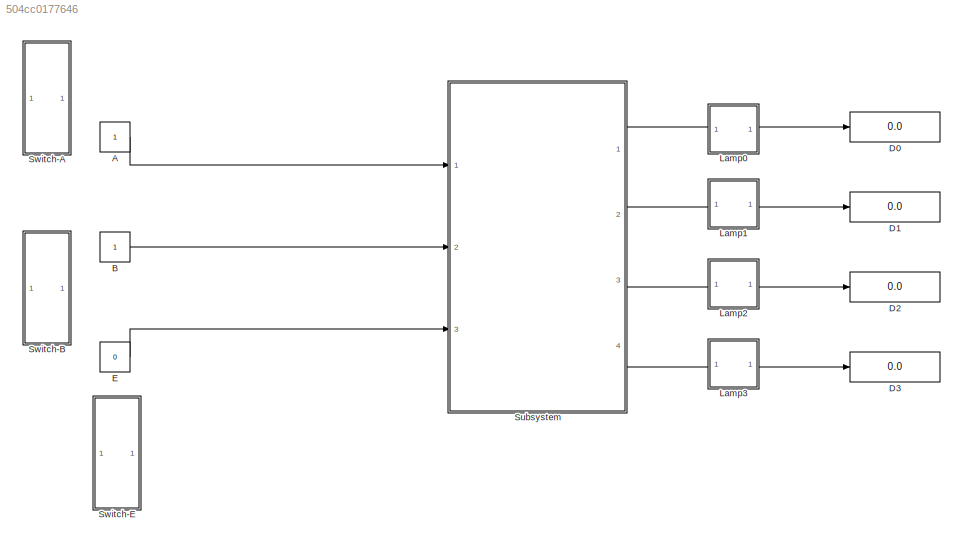
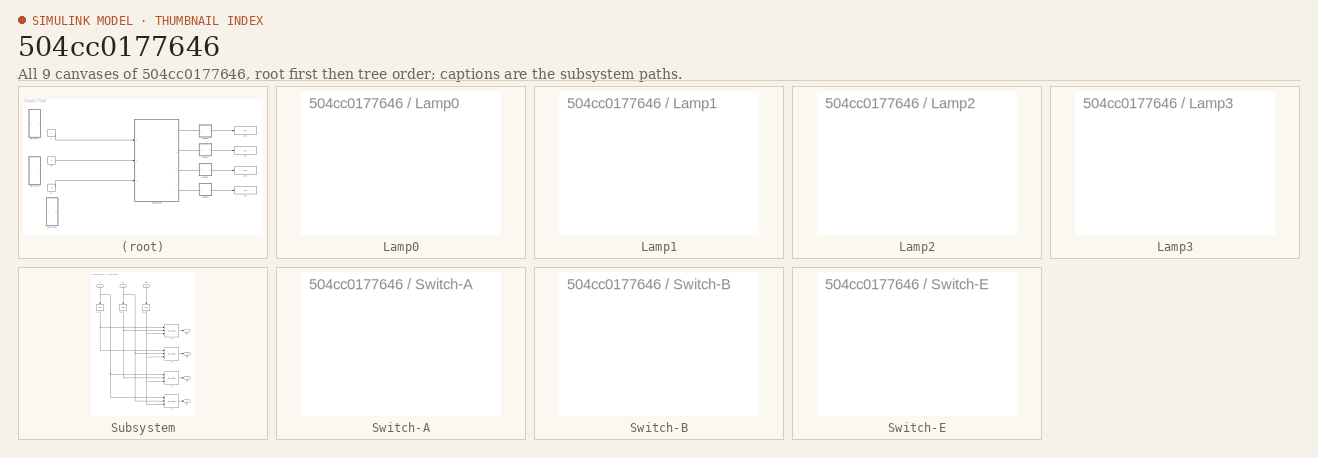
[diagram: thumbnail index - all 9 canvases of the model, root first then tree order]
MODEL slx_504cc0177646
KIND model
CONFIG AbsTol = auto
CONFIG FixedStep = auto
CONFIG MaxStep = auto
CONFIG MinStep = auto
CONFIG RelTol = 1e-3
CONFIG SampleTimeConstraint = Unconstrained
CONFIG Solver = ode45
CONFIG SolverMode = Auto
CONFIG SolverName = ode45
CONFIG StartTime = 0.0
CONFIG StopTime = 10.0
BLOCK [Constant] A
  OutDataTypeStr = boolean
BLOCK [Constant] B
  OutDataTypeStr = boolean
BLOCK [Display] D0
  Decimation = 1
  Ports = [1]
BLOCK [Display] D1
  Decimation = 1
  Ports = [1]
BLOCK [Display] D2
  Decimation = 1
  Ports = [1]
BLOCK [Display] D3
  Decimation = 1
  Ports = [1]
BLOCK [Constant] E
  OutDataTypeStr = boolean
  Value = 0
BLOCK [SubSystem] Lamp0
  DialogController = hmiCreateDDGDialog
  IsWebBlock = on
  MaskHideContents = on
  Ports = []
  RequestExecContextInheritance = off
BLOCK [SubSystem] Lamp1
  DialogController = hmiCreateDDGDialog
  IsWebBlock = on
  MaskHideContents = on
  Ports = []
  RequestExecContextInheritance = off
BLOCK [SubSystem] Lamp2
  DialogController = hmiCreateDDGDialog
  IsWebBlock = on
  MaskHideContents = on
  Ports = []
  RequestExecContextInheritance = off
BLOCK [SubSystem] Lamp3
  DialogController = hmiCreateDDGDialog
  IsWebBlock = on
  MaskHideContents = on
  Ports = []
  RequestExecContextInheritance = off
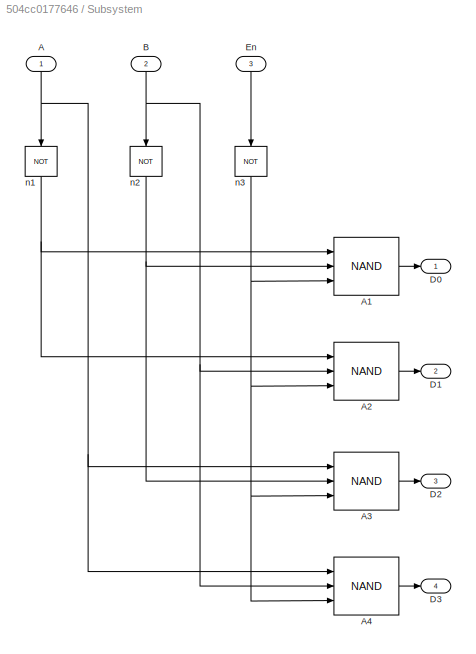
BLOCK [SubSystem] Subsystem
  Ports = [3, 4]
  RequestExecContextInheritance = off
BLOCK [Inport] Subsystem/A
  IconDisplay = Port number
BLOCK [Logic] Subsystem/A1
  AllPortsSameDT = off
  IconShape = distinctive
  Inputs = 3
  Operator = NAND
  OutDataTypeStr = boolean
  Ports = [3, 1]
BLOCK [Logic] Subsystem/A2
  AllPortsSameDT = off
  IconShape = distinctive
  Inputs = 3
  Operator = NAND
  OutDataTypeStr = boolean
  Ports = [3, 1]
BLOCK [Logic] Subsystem/A3
  AllPortsSameDT = off
  IconShape = distinctive
  Inputs = 3
  Operator = NAND
  OutDataTypeStr = boolean
  Ports = [3, 1]
BLOCK [Logic] Subsystem/A4
  AllPortsSameDT = off
  IconShape = distinctive
  Inputs = 3
  Operator = NAND
  OutDataTypeStr = boolean
  Ports = [3, 1]
BLOCK [Inport] Subsystem/B
  IconDisplay = Port number
  Port = 2
BLOCK [Outport] Subsystem/D0
  IconDisplay = Port number
BLOCK [Outport] Subsystem/D1
  IconDisplay = Port number
  Port = 2
BLOCK [Outport] Subsystem/D2
  IconDisplay = Port number
  Port = 3
BLOCK [Outport] Subsystem/D3
  IconDisplay = Port number
  Port = 4
BLOCK [Inport] Subsystem/En
  IconDisplay = Port number
  Port = 3
BLOCK [Logic] Subsystem/n1
  AllPortsSameDT = off
  IconShape = distinctive
  Operator = NOT
  OutDataTypeStr = boolean
  Ports = [1, 1]
BLOCK [Logic] Subsystem/n2
  AllPortsSameDT = off
  IconShape = distinctive
  Operator = NOT
  OutDataTypeStr = boolean
  Ports = [1, 1]
BLOCK [Logic] Subsystem/n3
  AllPortsSameDT = off
  IconShape = distinctive
  Operator = NOT
  OutDataTypeStr = boolean
  Ports = [1, 1]
BLOCK [SubSystem] Switch-A
  DialogController = hmiCreateDDGDialog
  IsWebBlock = on
  MaskHideContents = on
  Ports = []
  RequestExecContextInheritance = off
BLOCK [SubSystem] Switch-B
  DialogController = hmiCreateDDGDialog
  IsWebBlock = on
  MaskHideContents = on
  Ports = []
  RequestExecContextInheritance = off
BLOCK [SubSystem] Switch-E
  DialogController = hmiCreateDDGDialog
  IsWebBlock = on
  MaskHideContents = on
  Ports = []
  RequestExecContextInheritance = off
LINE A:1 -> Subsystem:1
LINE B:1 -> Subsystem:2
LINE E:1 -> Subsystem:3
LINE Subsystem/A1:1 -> Subsystem/D0:1
LINE Subsystem/A2:1 -> Subsystem/D1:1
LINE Subsystem/A3:1 -> Subsystem/D2:1
LINE Subsystem/A4:1 -> Subsystem/D3:1
NET Subsystem/A:1 -> Subsystem/A3:1, Subsystem/A4:1, Subsystem/n1:1
NET Subsystem/B:1 -> Subsystem/A2:2, Subsystem/A4:2, Subsystem/n2:1
LINE Subsystem/En:1 -> Subsystem/n3:1
NET Subsystem/n1:1 -> Subsystem/A1:1, Subsystem/A2:1
NET Subsystem/n2:1 -> Subsystem/A1:2, Subsystem/A3:2
NET Subsystem/n3:1 -> Subsystem/A1:3, Subsystem/A2:3, Subsystem/A3:3, Subsystem/A4:3
LINE Subsystem:1 -> D0:1
LINE Subsystem:2 -> D1:1
LINE Subsystem:3 -> D2:1
LINE Subsystem:4 -> D3:1
note: NET lines group one-source signal fan-out (src -> all destinations, sorted); 1:1 wires keep LINE
